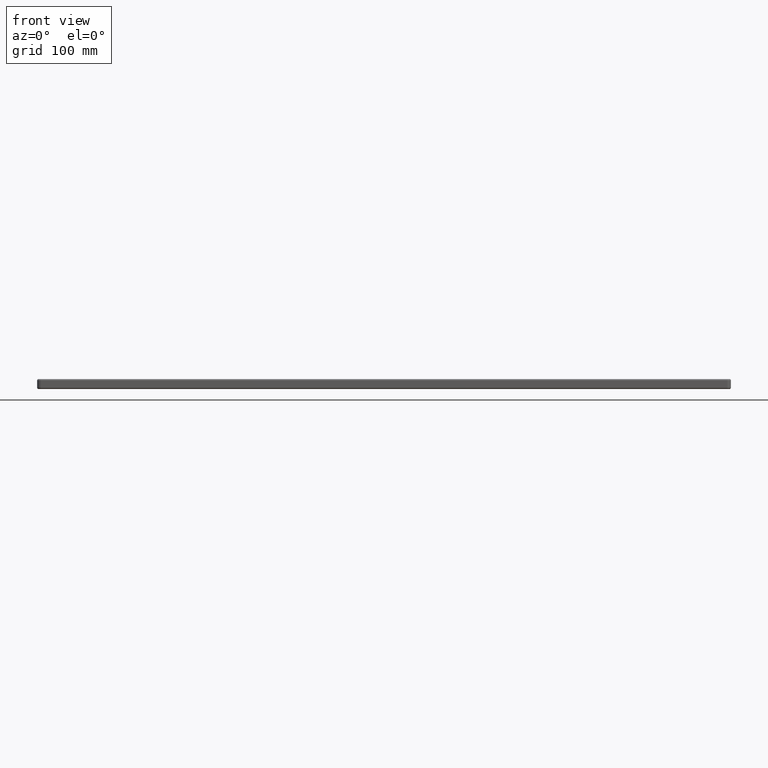
[diagram: clean part render]
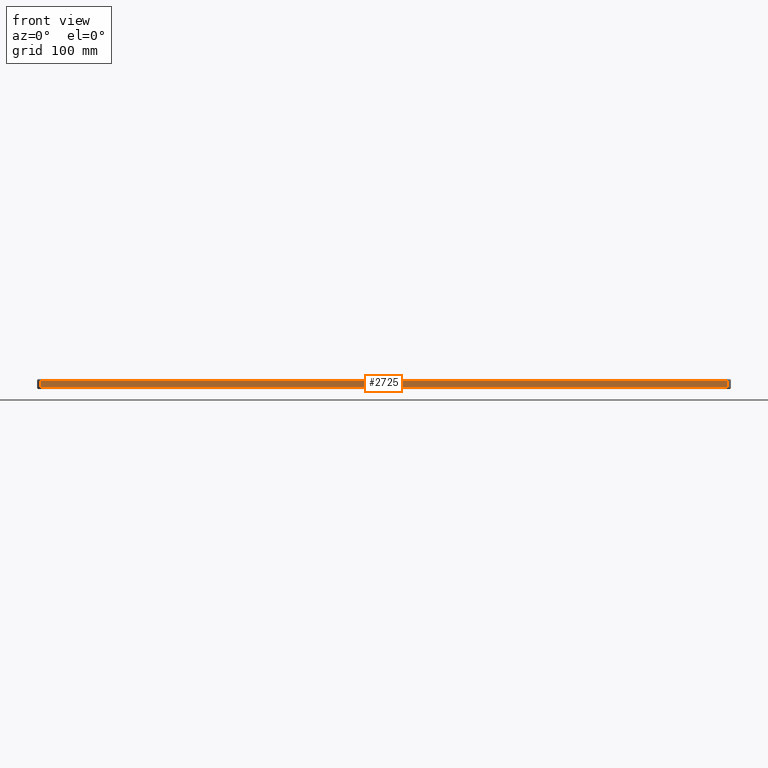
[diagram: same view with one face highlighted and labeled with its STEP entity id]
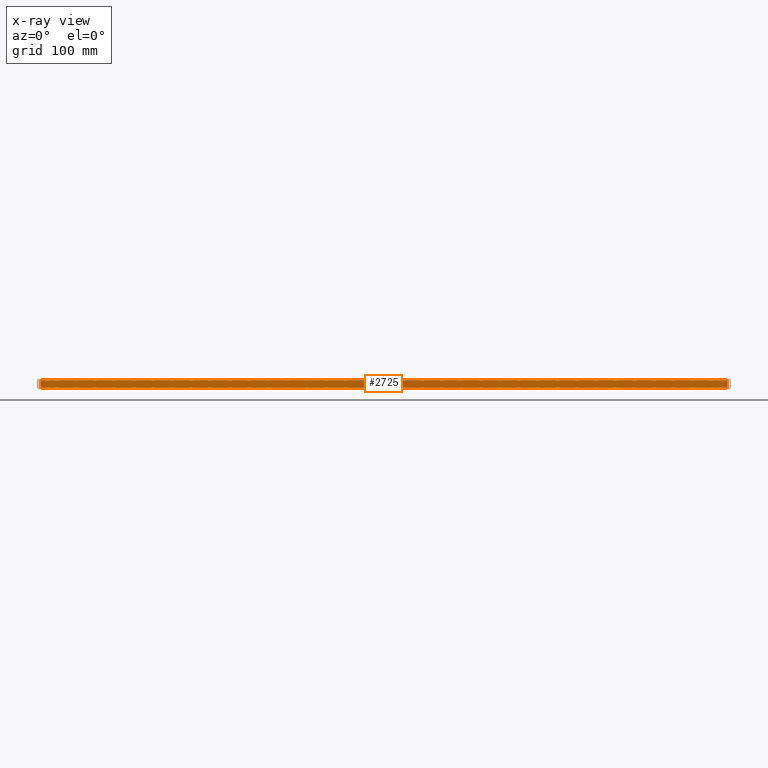
[diagram: x-ray of the same camera — body ghosted, the highlighted face saturated]
A machine part, front view. The second image highlights one B-rep face of the part: STEP entity #2725.
The next image is the same camera in x-ray: the body ghosted, the highlighted face saturated — about 0% of this face is hidden behind the body in this view.
In plain terms, the highlighted planar face has unit normal (0, -1, 0).
Its self-contained STEP definition (entity closure, byte-faithful):
#60 = DIRECTION ( 'NONE',  ( 1.000000000000000000, 0.0000000000000000000, 0.0000000000000000000 ) ) ;
#928 = CARTESIAN_POINT ( 'NONE',  ( 0.0000000000000000000, 0.0000000000000000000, -13.00000000000000000 ) ) ;
#2725 = ADVANCED_FACE ( 'NONE', ( #6611 ), #3456, .T. ) ;
#2855 = VECTOR ( 'NONE', #9680, 1000.000000000000000 ) ;
#3456 = PLANE ( 'NONE',  #28615 ) ;
#3548 = CARTESIAN_POINT ( 'NONE',  ( 895.0000000000000000, 0.0000000000000000000, -11.00000000000000000 ) ) ;
#3559 = DIRECTION ( 'NONE',  ( 0.0000000000000000000, -1.000000000000000000, 0.0000000000000000000 ) ) ;
#5752 = LINE ( 'NONE', #26085, #2855 ) ;
#6611 = FACE_OUTER_BOUND ( 'NONE', #23380, .T. ) ;
#6922 = EDGE_CURVE ( 'NONE', #17865, #15059, #5752, .T. ) ;
#7295 = ORIENTED_EDGE ( 'NONE', *, *, #26147, .T. ) ;
#7701 = DIRECTION ( 'NONE',  ( -0.0000000000000000000, 0.0000000000000000000, 1.000000000000000000 ) ) ;
#9680 = DIRECTION ( 'NONE',  ( -1.000000000000000000, -0.0000000000000000000, 0.0000000000000000000 ) ) ;
#10134 = CARTESIAN_POINT ( 'NONE',  ( 895.0000000000000000, 0.0000000000000000000, -13.00000000000000000 ) ) ;
#10196 = ORIENTED_EDGE ( 'NONE', *, *, #19898, .T. ) ;
#10324 = DIRECTION ( 'NONE',  ( 0.0000000000000000000, -0.0000000000000000000, -1.000000000000000000 ) ) ;
#11249 = CARTESIAN_POINT ( 'NONE',  ( 895.0000000000000000, 0.0000000000000000000, -2.000000000000000000 ) ) ;
#13543 = ORIENTED_EDGE ( 'NONE', *, *, #30017, .T. ) ;
#13981 = CARTESIAN_POINT ( 'NONE',  ( 4.999999999999999100, 0.0000000000000000000, -2.000000000000000000 ) ) ;
#14194 = VECTOR ( 'NONE', #60, 1000.000000000000000 ) ;
#15059 = VERTEX_POINT ( 'NONE', #13981 ) ;
#17502 = VERTEX_POINT ( 'NONE', #3548 ) ;
#17636 = LINE ( 'NONE', #10134, #20577 ) ;
#17865 = VERTEX_POINT ( 'NONE', #11249 ) ;
#18156 = VECTOR ( 'NONE', #18264, 1000.000000000000000 ) ;
#18264 = DIRECTION ( 'NONE',  ( -0.0000000000000000000, -0.0000000000000000000, -1.000000000000000000 ) ) ;
#19898 = EDGE_CURVE ( 'NONE', #26653, #17502, #23332, .T. ) ;
#19918 = CARTESIAN_POINT ( 'NONE',  ( 4.999999999999999100, 0.0000000000000000000, -11.00000000000000000 ) ) ;
#20577 = VECTOR ( 'NONE', #7701, 1000.000000000000000 ) ;
#22655 = ORIENTED_EDGE ( 'NONE', *, *, #6922, .T. ) ;
#23332 = LINE ( 'NONE', #28113, #14194 ) ;
#23380 = EDGE_LOOP ( 'NONE', ( #7295, #10196, #13543, #22655 ) ) ;
#25124 = LINE ( 'NONE', #25225, #18156 ) ;
#25225 = CARTESIAN_POINT ( 'NONE',  ( 4.999999999999999100, 0.0000000000000000000, -13.00000000000000000 ) ) ;
#26085 = CARTESIAN_POINT ( 'NONE',  ( 4.999999999999999100, 0.0000000000000000000, -2.000000000000000000 ) ) ;
#26147 = EDGE_CURVE ( 'NONE', #15059, #26653, #25124, .T. ) ;
#26653 = VERTEX_POINT ( 'NONE', #19918 ) ;
#28113 = CARTESIAN_POINT ( 'NONE',  ( 0.0000000000000000000, 0.0000000000000000000, -11.00000000000000000 ) ) ;
#28615 = AXIS2_PLACEMENT_3D ( 'NONE', #928, #3559, #10324 ) ;
#30017 = EDGE_CURVE ( 'NONE', #17502, #17865, #17636, .T. ) ;